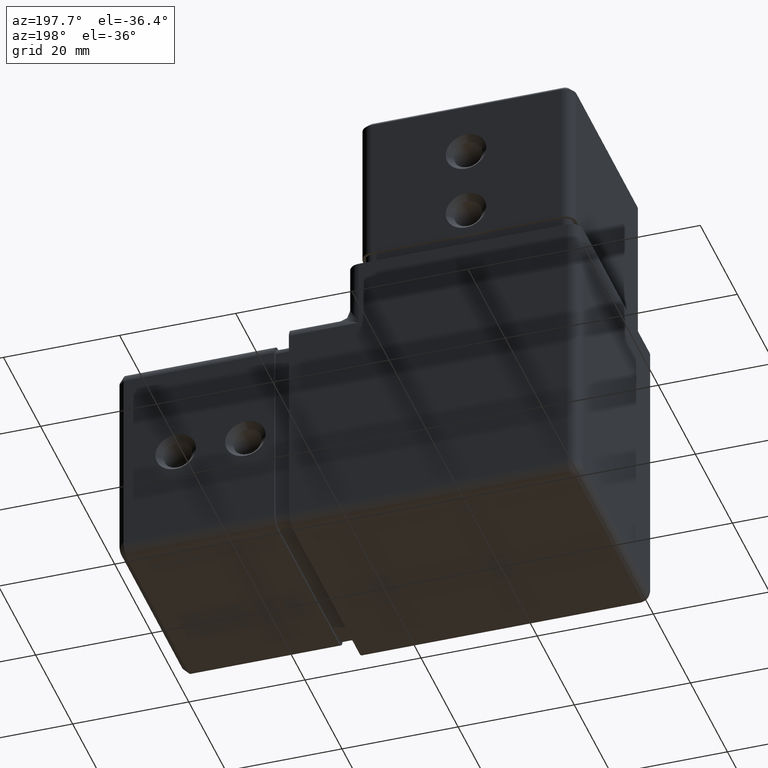
[diagram: clean part render]
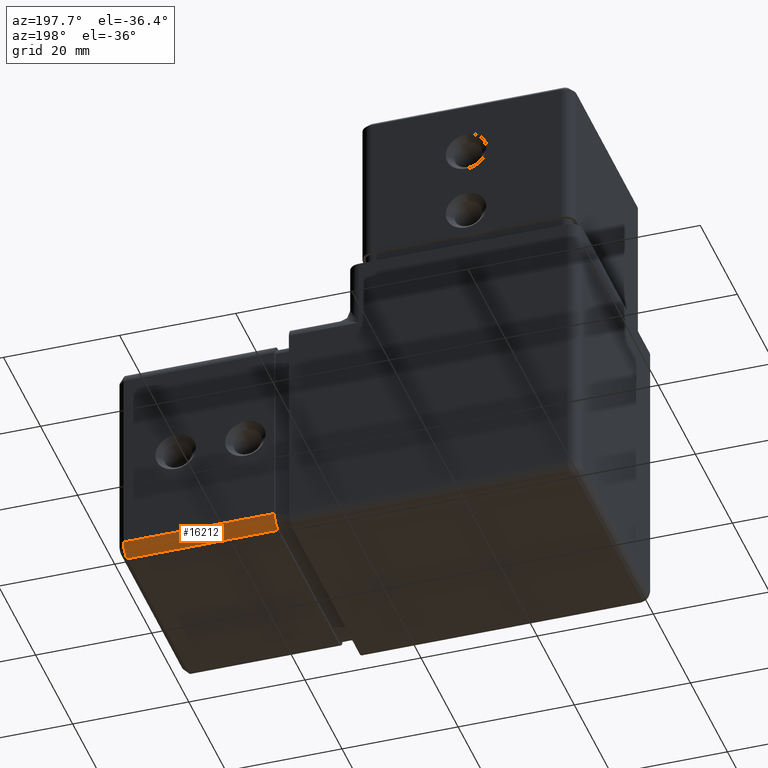
[diagram: same view with one face highlighted and labeled with its STEP entity id]
A machine part, auxiliary view. The second image highlights one B-rep face of the part: STEP entity #16212.
In plain terms, the highlighted cylindrical surface (edge-blend (fillet) strip) has radius 2 mm, axis along (-1, -0, 0).
Its self-contained STEP definition (entity closure, byte-faithful):
#162 = DIRECTION ( 'NONE',  ( 0.000000000000000000, 0.000000000000000000, 1.000000000000000000 ) ) ;
#891 = ORIENTED_EDGE ( 'NONE', *, *, #1770, .T. ) ;
#1021 = VERTEX_POINT ( 'NONE', #16219 ) ;
#1080 = DIRECTION ( 'NONE',  ( 0.000000000000000000, 2.038300084272750229E-14, -1.000000000000000000 ) ) ;
#1542 = EDGE_CURVE ( 'NONE', #12660, #1021, #11163, .T. ) ;
#1770 = EDGE_CURVE ( 'NONE', #7278, #5382, #10011, .T. ) ;
#1976 = EDGE_CURVE ( 'NONE', #1021, #7278, #3404, .T. ) ;
#2517 = EDGE_CURVE ( 'NONE', #12660, #5382, #3636, .T. ) ;
#3304 = CARTESIAN_POINT ( 'NONE',  ( 60.00000000000000000, -3.600000000000016520, -18.40000000000002700 ) ) ;
#3404 = LINE ( 'NONE', #3304, #17283 ) ;
#3636 = LINE ( 'NONE', #7758, #4319 ) ;
#4063 = EDGE_LOOP ( 'NONE', ( #15181, #6087, #5999, #891 ) ) ;
#4167 = CARTESIAN_POINT ( 'NONE',  ( 33.00000000000000000, -1.600000000000005862, -16.39999999999999858 ) ) ;
#4319 = VECTOR ( 'NONE', #16799, 1000.000000000000000 ) ;
#4959 = AXIS2_PLACEMENT_3D ( 'NONE', #8720, #13179, #1080 ) ;
#5382 = VERTEX_POINT ( 'NONE', #4167 ) ;
#5999 = ORIENTED_EDGE ( 'NONE', *, *, #1976, .T. ) ;
#6087 = ORIENTED_EDGE ( 'NONE', *, *, #1542, .T. ) ;
#7278 = VERTEX_POINT ( 'NONE', #9501 ) ;
#7552 = DIRECTION ( 'NONE',  ( -1.000000000000000000, -0.000000000000000000, 4.440892098500625176E-16 ) ) ;
#7758 = CARTESIAN_POINT ( 'NONE',  ( 60.00000000000000000, -1.600000000000002975, -16.40000000000001279 ) ) ;
#8085 = AXIS2_PLACEMENT_3D ( 'NONE', #16728, #7552, #162 ) ;
#8720 = CARTESIAN_POINT ( 'NONE',  ( 59.00000000000000711, -3.600000000000002309, -16.40000000000003055 ) ) ;
#9501 = CARTESIAN_POINT ( 'NONE',  ( 33.00000000000000000, -3.600000000000016964, -18.40000000000001634 ) ) ;
#9682 = CARTESIAN_POINT ( 'NONE',  ( 33.00000000000000000, -3.600000000000002309, -16.40000000000001990 ) ) ;
#10011 = CIRCLE ( 'NONE', #14770, 1.999999999999998224 ) ;
#10367 = CARTESIAN_POINT ( 'NONE',  ( 59.00000000000000711, -1.600000000000002975, -16.40000000000001279 ) ) ;
#10787 = DIRECTION ( 'NONE',  ( -1.000000000000000000, -0.000000000000000000, 4.440892098500625176E-16 ) ) ;
#11163 = CIRCLE ( 'NONE', #4959, 1.999999999999998224 ) ;
#11194 = DIRECTION ( 'NONE',  ( 0.000000000000000000, 8.673617379884043361E-16, 1.000000000000000000 ) ) ;
#12660 = VERTEX_POINT ( 'NONE', #10367 ) ;
#12810 = FACE_OUTER_BOUND ( 'NONE', #4063, .T. ) ;
#13179 = DIRECTION ( 'NONE',  ( -1.000000000000000000, -0.000000000000000000, -0.000000000000000000 ) ) ;
#14462 = CYLINDRICAL_SURFACE ( 'NONE', #8085, 1.999999999999998224 ) ;
#14770 = AXIS2_PLACEMENT_3D ( 'NONE', #9682, #18757, #11194 ) ;
#15181 = ORIENTED_EDGE ( 'NONE', *, *, #2517, .F. ) ;
#16212 = ADVANCED_FACE ( 'NONE', ( #12810 ), #14462, .T. ) ;
#16219 = CARTESIAN_POINT ( 'NONE',  ( 59.00000000000000711, -3.600000000000016520, -18.40000000000002700 ) ) ;
#16728 = CARTESIAN_POINT ( 'NONE',  ( 60.00000000000000000, -3.600000000000002309, -16.40000000000003055 ) ) ;
#16799 = DIRECTION ( 'NONE',  ( -1.000000000000000000, -0.000000000000000000, 4.440892098500625176E-16 ) ) ;
#17283 = VECTOR ( 'NONE', #10787, 1000.000000000000000 ) ;
#18757 = DIRECTION ( 'NONE',  ( 1.000000000000000000, -0.000000000000000000, -4.440892098500625176E-16 ) ) ;